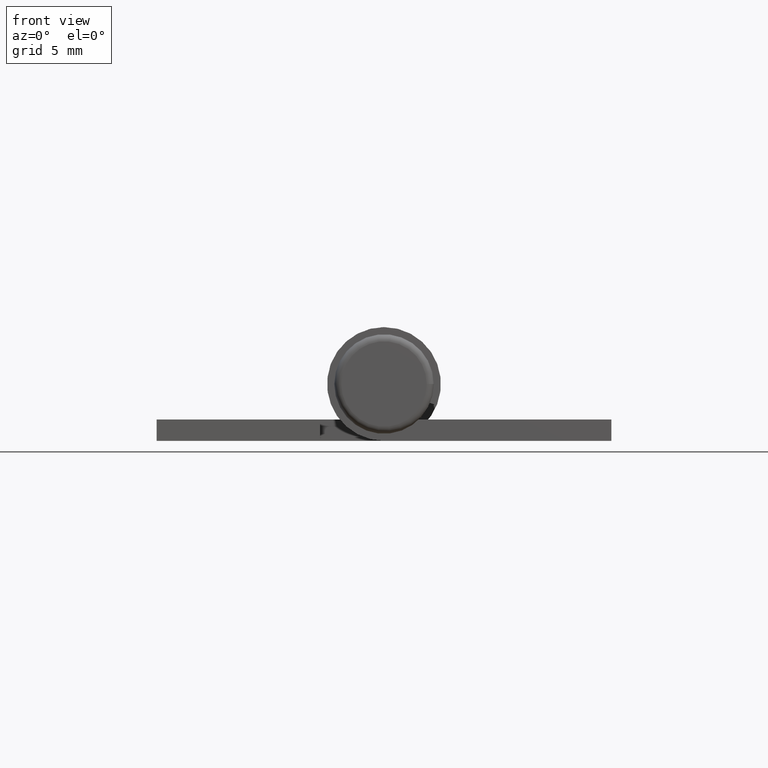
[diagram: clean part render]
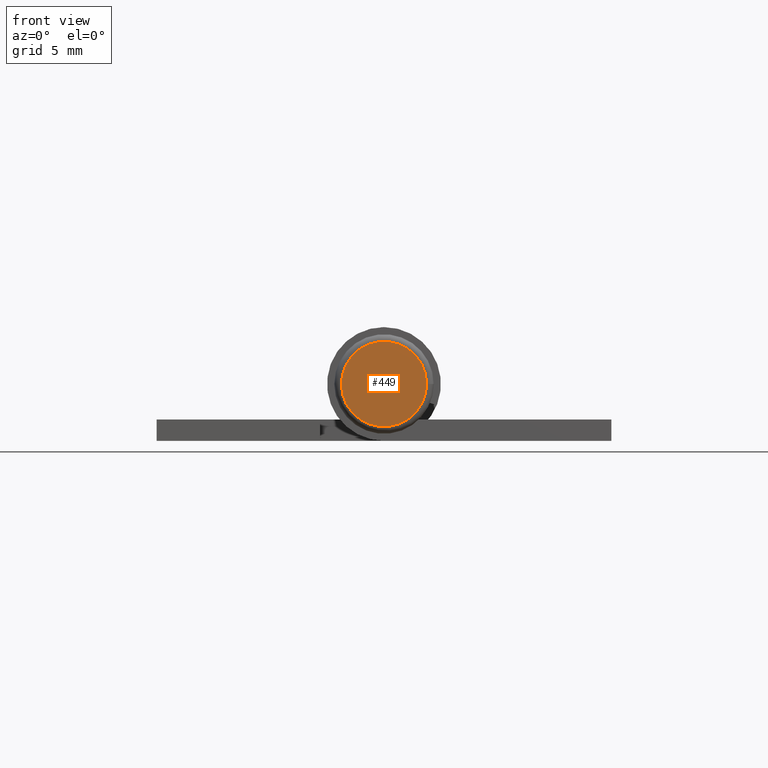
[diagram: same view with one face highlighted and labeled with its STEP entity id]
A machine part, front view. The second image highlights one B-rep face of the part: STEP entity #449.
In plain terms, the highlighted planar face has unit normal (-0, 1, 0).
Its self-contained STEP definition (entity closure, byte-faithful):
#69=FACE_OUTER_BOUND('',#101,.T.);
#101=EDGE_LOOP('',(#400));
#197=CIRCLE('',#492,3.);
#236=VERTEX_POINT('',#751);
#291=EDGE_CURVE('',#236,#236,#197,.T.);
#400=ORIENTED_EDGE('',*,*,#291,.F.);
#422=PLANE('',#496);
#449=ADVANCED_FACE('',(#69),#422,.F.);
#492=AXIS2_PLACEMENT_3D('',#752,#617,#618);
#496=AXIS2_PLACEMENT_3D('',#758,#625,#626);
#617=DIRECTION('center_axis',(0.,0.,1.));
#618=DIRECTION('ref_axis',(1.,0.,0.));
#625=DIRECTION('center_axis',(0.,0.,1.));
#626=DIRECTION('ref_axis',(1.,0.,0.));
#751=CARTESIAN_POINT('',(-3.,4.,-1.5));
#752=CARTESIAN_POINT('Origin',(-4.89858719658941E-16,4.,-1.5));
#758=CARTESIAN_POINT('Origin',(-4.89858719658941E-16,4.,-1.5));